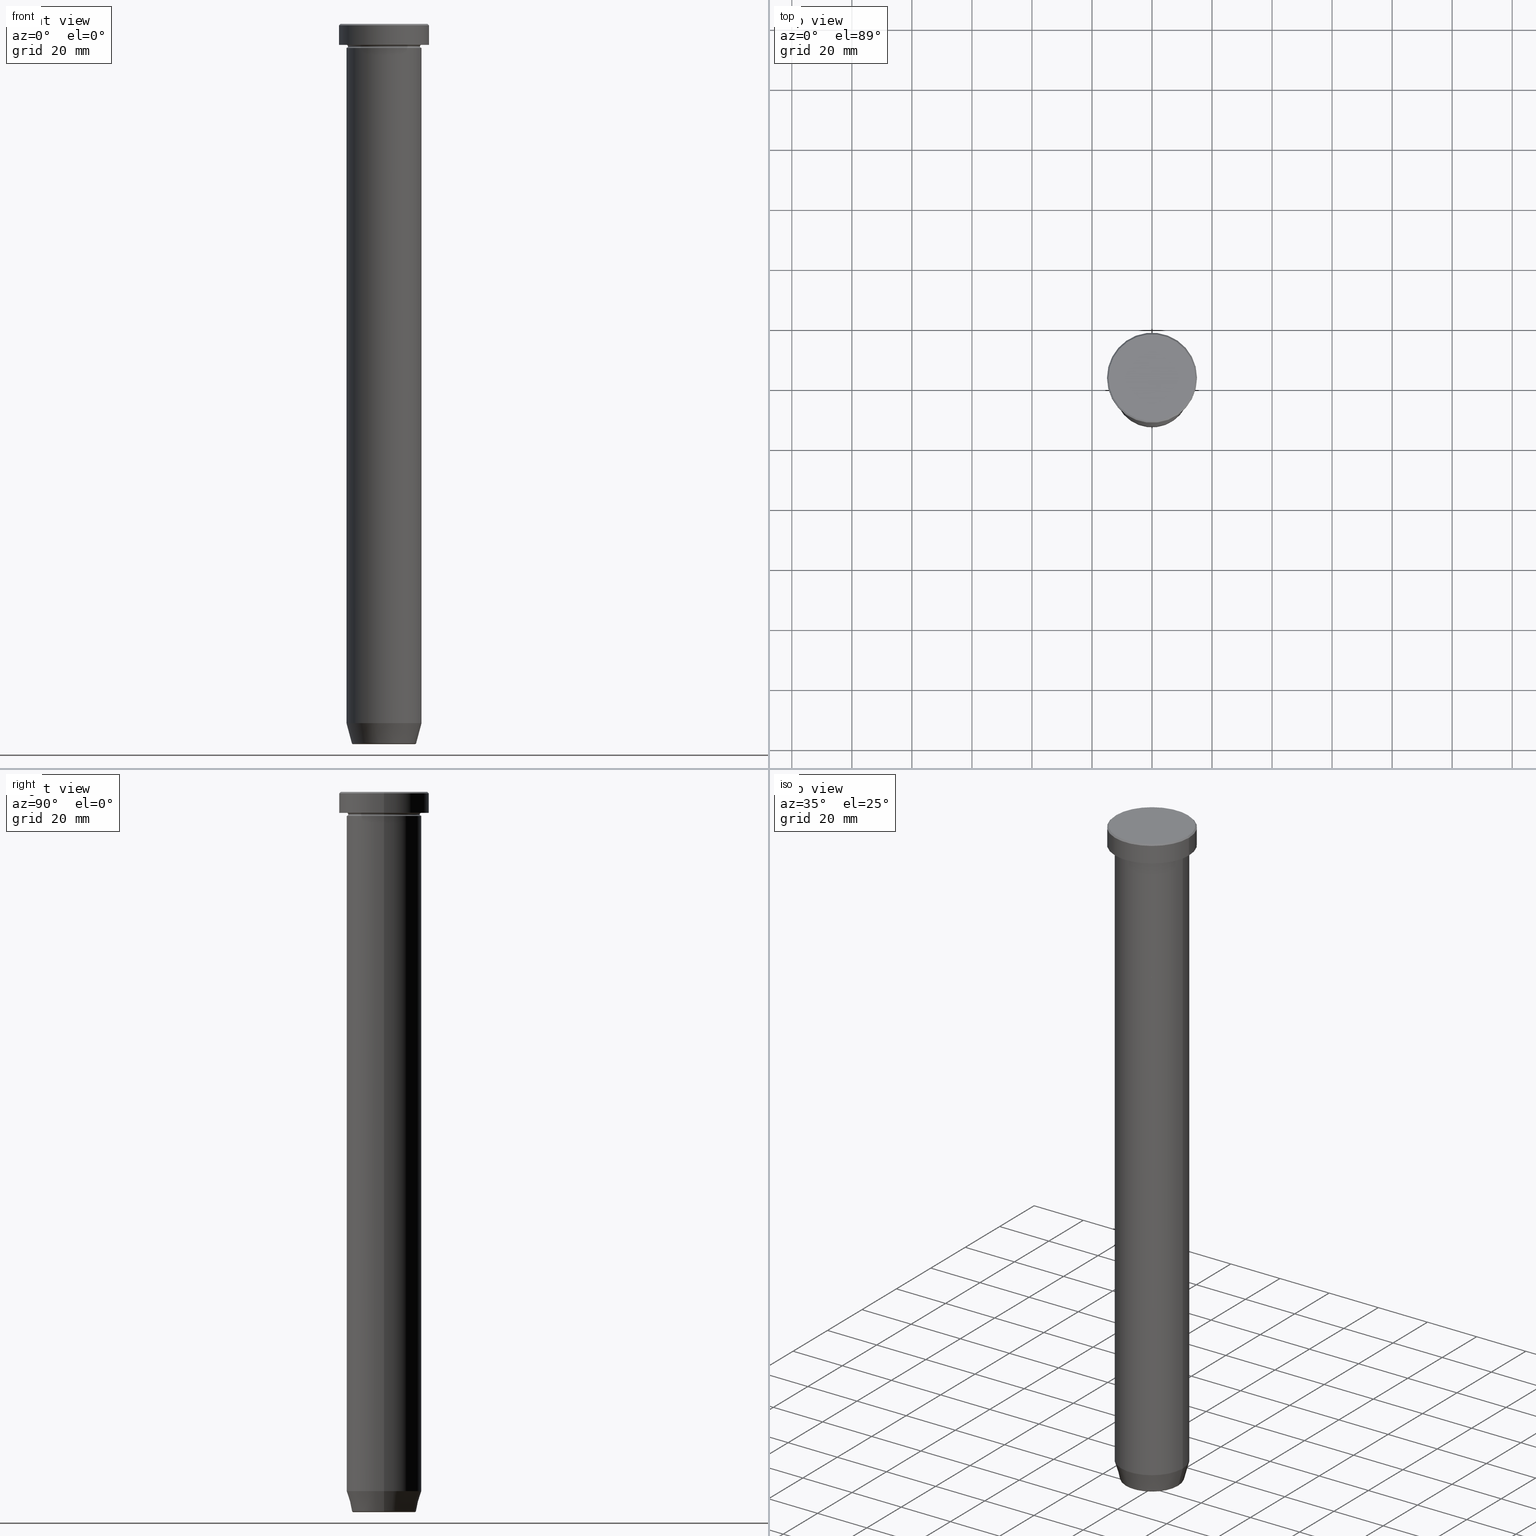
[diagram: canonical four-view strip — front | top / right | iso, engineering-drawing reading convention]
A machine part, canonical four-view strip (front | top / right | iso — engineering-drawing reading convention). The complete STEP part file that produces these views, byte-faithful:
ISO-10303-21;
HEADER;
FILE_DESCRIPTION (( 'STEP AP203' ),
    '1' );
FILE_NAME ('484c.STEP',
    '2024-01-02T20:43:46',
    ( '' ),
    ( '' ),
    'SwSTEP 2.0',
    'SolidWorks 2019',
    '' );
FILE_SCHEMA (( 'CONFIG_CONTROL_DESIGN' ));
ENDSEC;

DATA;
#1 = APPROVAL_ROLE ( '' ) ;
#2 = AXIS2_PLACEMENT_3D ( 'NONE', #51, #413, #9 ) ;
#3 = CC_DESIGN_APPROVAL ( #232, ( #331 ) ) ;
#4 = ORIENTED_EDGE ( 'NONE', *, *, #514, .F. ) ;
#5 = DIRECTION ( 'NONE',  ( 0.000000000000000000, 0.000000000000000000, -1.000000000000000000 ) ) ;
#6 = APPROVAL_STATUS ( 'not_yet_approved' ) ;
#7 = ORIENTED_EDGE ( 'NONE', *, *, #447, .T. ) ;
#8 = CARTESIAN_POINT ( 'NONE',  ( -12.50000000000000000, 1.530808498934191521E-15, -7.500000000000000000 ) ) ;
#9 = DIRECTION ( 'NONE',  ( 1.000000000000000000, 0.000000000000000000, 0.000000000000000000 ) ) ;
#10 = FACE_OUTER_BOUND ( 'NONE', #495, .T. ) ;
#11 = APPLICATION_PROTOCOL_DEFINITION ( 'international standard', 'config_control_design', 1994, #403 ) ;
#12 = ADVANCED_FACE ( 'NONE', ( #10 ), #543, .T. ) ;
#13 = CARTESIAN_POINT ( 'NONE',  ( -15.00000000000000000, 1.836970198721029589E-15, -0.4999999999999831246 ) ) ;
#14 = AXIS2_PLACEMENT_3D ( 'NONE', #190, #546, #460 ) ;
#15 = CIRCLE ( 'NONE', #477, 15.00000000000000000 ) ;
#16 = DIRECTION ( 'NONE',  ( 1.000000000000000000, 0.000000000000000000, 0.000000000000000000 ) ) ;
#17 = APPROVAL ( #6, 'NEUR�EN�' ) ;
#18 = CARTESIAN_POINT ( 'NONE',  ( 14.50000000000001066, 1.775737858763663593E-15, 0.000000000000000000 ) ) ;
#19 = EDGE_CURVE ( 'NONE', #313, #94, #385, .T. ) ;
#20 = DIRECTION ( 'NONE',  ( -0.000000000000000000, -0.000000000000000000, 1.000000000000000000 ) ) ;
#21 = VECTOR ( 'NONE', #472, 1000.000000000000000 ) ;
#22 = DIRECTION ( 'NONE',  ( -1.000000000000000000, 0.000000000000000000, 0.000000000000000000 ) ) ;
#23 = ORIENTED_EDGE ( 'NONE', *, *, #45, .F. ) ;
#24 = DIRECTION ( 'NONE',  ( -1.000000000000000000, 0.000000000000000000, 0.000000000000000000 ) ) ;
#25 = AXIS2_PLACEMENT_3D ( 'NONE', #407, #5, #184 ) ;
#26 = CC_DESIGN_SECURITY_CLASSIFICATION ( #577, ( #498 ) ) ;
#27 = DIRECTION ( 'NONE',  ( -0.2588190451025209060, 3.169619151431766790E-17, 0.9659258262890682012 ) ) ;
#28 = VERTEX_POINT ( 'NONE', #357 ) ;
#29 = EDGE_CURVE ( 'NONE', #28, #387, #521, .T. ) ;
#30 = CARTESIAN_POINT ( 'NONE',  ( 0.000000000000000000, 0.000000000000000000, 0.000000000000000000 ) ) ;
#31 = DIRECTION ( 'NONE',  ( 1.000000000000000000, 0.000000000000000000, 0.000000000000000000 ) ) ;
#32 = AXIS2_PLACEMENT_3D ( 'NONE', #205, #159, #22 ) ;
#33 = EDGE_LOOP ( 'NONE', ( #462, #525, #364, #400 ) ) ;
#34 = PLANE ( 'NONE',  #116 ) ;
#35 = DIRECTION ( 'NONE',  ( 1.000000000000000000, 0.000000000000000000, 0.000000000000000000 ) ) ;
#36 = ADVANCED_FACE ( 'NONE', ( #153 ), #563, .T. ) ;
#37 = DIRECTION ( 'NONE',  ( -0.000000000000000000, -0.000000000000000000, 1.000000000000000000 ) ) ;
#38 = DIRECTION ( 'NONE',  ( -0.000000000000000000, -0.000000000000000000, 1.000000000000000000 ) ) ;
#39 = CARTESIAN_POINT ( 'NONE',  ( 0.000000000000000000, 12.50000000000000000, -50.00000000000000000 ) ) ;
#40 = CARTESIAN_POINT ( 'NONE',  ( 12.50000000000000000, 0.000000000000000000, -50.00000000000000000 ) ) ;
#41 = AXIS2_PLACEMENT_3D ( 'NONE', #394, #308, #124 ) ;
#42 = DIRECTION ( 'NONE',  ( 1.000000000000000000, 0.000000000000000000, 0.000000000000000000 ) ) ;
#43 = DIRECTION ( 'NONE',  ( 1.000000000000000000, 0.000000000000000000, 0.000000000000000000 ) ) ;
#44 = CARTESIAN_POINT ( 'NONE',  ( 12.50000000000000000, 0.000000000000000000, -232.9999999999999716 ) ) ;
#45 = EDGE_CURVE ( 'NONE', #155, #313, #68, .T. ) ;
#46 = AXIS2_PLACEMENT_3D ( 'NONE', #567, #381, #327 ) ;
#47 = ORIENTED_EDGE ( 'NONE', *, *, #292, .T. ) ;
#48 = CARTESIAN_POINT ( 'NONE',  ( 10.24069215899266361, 0.000000000000000000, -240.0000000000000000 ) ) ;
#49 = AXIS2_PLACEMENT_3D ( 'NONE', #436, #268, #120 ) ;
#50 = PERSON_AND_ORGANIZATION ( #517, #373 ) ;
#51 = CARTESIAN_POINT ( 'NONE',  ( 0.000000000000000000, 0.000000000000000000, -7.500000000000000000 ) ) ;
#52 = DIRECTION ( 'NONE',  ( -1.000000000000000000, 0.000000000000000000, 0.000000000000000000 ) ) ;
#53 = ADVANCED_FACE ( 'NONE', ( #58 ), #247, .F. ) ;
#54 = ORIENTED_EDGE ( 'NONE', *, *, #559, .F. ) ;
#55 = CARTESIAN_POINT ( 'NONE',  ( 0.000000000000000000, 0.000000000000000000, -50.00000000000000000 ) ) ;
#56 = CARTESIAN_POINT ( 'NONE',  ( 12.50000000000000000, 0.000000000000000000, -50.00000000000000000 ) ) ;
#57 = EDGE_LOOP ( 'NONE', ( #215, #198 ) ) ;
#58 = FACE_OUTER_BOUND ( 'NONE', #453, .T. ) ;
#59 = DIRECTION ( 'NONE',  ( -0.000000000000000000, -0.000000000000000000, 1.000000000000000000 ) ) ;
#60 = DIRECTION ( 'NONE',  ( 0.000000000000000000, -1.000000000000000000, 0.000000000000000000 ) ) ;
#61 = DIRECTION ( 'NONE',  ( -0.000000000000000000, -0.000000000000000000, 1.000000000000000000 ) ) ;
#62 = CC_DESIGN_APPROVAL ( #17, ( #577 ) ) ;
#63 = ORIENTED_EDGE ( 'NONE', *, *, #384, .F. ) ;
#64 = LINE ( 'NONE', #106, #379 ) ;
#65 = ORIENTED_EDGE ( 'NONE', *, *, #96, .T. ) ;
#66 = LINE ( 'NONE', #428, #91 ) ;
#67 = ORIENTED_EDGE ( 'NONE', *, *, #298, .F. ) ;
#68 = LINE ( 'NONE', #18, #21 ) ;
#69 = AXIS2_PLACEMENT_3D ( 'NONE', #442, #38, #218 ) ;
#70 = CIRCLE ( 'NONE', #284, 12.50000000000000000 ) ;
#71 = EDGE_CURVE ( 'NONE', #286, #282, #239, .T. ) ;
#72 = CC_DESIGN_PERSON_AND_ORGANIZATION_ASSIGNMENT ( #142, #362, ( #498 ) ) ;
#73 = FACE_OUTER_BOUND ( 'NONE', #238, .T. ) ;
#74 = ORIENTED_EDGE ( 'NONE', *, *, #123, .F. ) ;
#75 = DIRECTION ( 'NONE',  ( 1.000000000000000000, 0.000000000000000000, 0.000000000000000000 ) ) ;
#76 = DIRECTION ( 'NONE',  ( 0.000000000000000000, 0.000000000000000000, -1.000000000000000000 ) ) ;
#77 = DIRECTION ( 'NONE',  ( -0.000000000000000000, -0.000000000000000000, 1.000000000000000000 ) ) ;
#78 = EDGE_CURVE ( 'NONE', #375, #82, #64, .T. ) ;
#79 = APPROVAL_PERSON_ORGANIZATION ( #410, #17, #191 ) ;
#80 = FACE_OUTER_BOUND ( 'NONE', #207, .T. ) ;
#81 = DIRECTION ( 'NONE',  ( 1.000000000000000000, 0.000000000000000000, 0.000000000000000000 ) ) ;
#82 = VERTEX_POINT ( 'NONE', #418 ) ;
#83 = FACE_OUTER_BOUND ( 'NONE', #138, .T. ) ;
#84 = CIRCLE ( 'NONE', #409, 12.50000000000000000 ) ;
#85 =( GEOMETRIC_REPRESENTATION_CONTEXT ( 3 ) GLOBAL_UNCERTAINTY_ASSIGNED_CONTEXT ( ( #104 ) ) GLOBAL_UNIT_ASSIGNED_CONTEXT ( ( #363, #412, #508 ) ) REPRESENTATION_CONTEXT ( 'NONE', 'WORKASPACE' ) );
#86 = EDGE_CURVE ( 'NONE', #267, #458, #125, .T. ) ;
#87 = PERSON_AND_ORGANIZATION ( #517, #373 ) ;
#88 = EDGE_LOOP ( 'NONE', ( #54, #173, #523, #503 ) ) ;
#89 = CC_DESIGN_PERSON_AND_ORGANIZATION_ASSIGNMENT ( #319, #590, ( #498 ) ) ;
#90 = ORIENTED_EDGE ( 'NONE', *, *, #29, .F. ) ;
#91 = VECTOR ( 'NONE', #157, 1000.000000000000000 ) ;
#92 = DATE_TIME_ROLE ( 'classification_date' ) ;
#93 = ORIENTED_EDGE ( 'NONE', *, *, #135, .F. ) ;
#94 = VERTEX_POINT ( 'NONE', #13 ) ;
#95 = DIRECTION ( 'NONE',  ( -0.000000000000000000, -0.000000000000000000, 1.000000000000000000 ) ) ;
#96 = EDGE_CURVE ( 'NONE', #282, #192, #296, .T. ) ;
#97 = AXIS2_PLACEMENT_3D ( 'NONE', #126, #443, #42 ) ;
#98 = SHAPE_DEFINITION_REPRESENTATION ( #213, #208 ) ;
#99 = VECTOR ( 'NONE', #255, 1000.000000000000000 ) ;
#100 = EDGE_LOOP ( 'NONE', ( #466, #419, #117, #67 ) ) ;
#101 = CARTESIAN_POINT ( 'NONE',  ( -10.72365507213718949, 1.422038742429750318E-15, -239.6294095225512422 ) ) ;
#102 = DIRECTION ( 'NONE',  ( -1.000000000000000000, 1.224646799147353454E-16, 0.000000000000000000 ) ) ;
#103 = CARTESIAN_POINT ( 'NONE',  ( 0.000000000000000000, 0.000000000000000000, 0.000000000000000000 ) ) ;
#104 = UNCERTAINTY_MEASURE_WITH_UNIT (LENGTH_MEASURE( 1.000000000000000082E-05 ), #363, 'distance_accuracy_value', 'NONE');
#105 = DIRECTION ( 'NONE',  ( -0.000000000000000000, -0.000000000000000000, 1.000000000000000000 ) ) ;
#106 = CARTESIAN_POINT ( 'NONE',  ( -12.50000000000000000, 1.530808498934191521E-15, 0.000000000000000000 ) ) ;
#107 = VERTEX_POINT ( 'NONE', #513 ) ;
#108 = AXIS2_PLACEMENT_3D ( 'NONE', #541, #482, #305 ) ;
#109 = ADVANCED_FACE ( 'NONE', ( #111 ), #240, .T. ) ;
#110 = AXIS2_PLACEMENT_3D ( 'NONE', #182, #358, #288 ) ;
#111 = FACE_OUTER_BOUND ( 'NONE', #451, .T. ) ;
#112 = AXIS2_PLACEMENT_3D ( 'NONE', #370, #493, #449 ) ;
#113 = DIRECTION ( 'NONE',  ( 0.000000000000000000, 0.000000000000000000, -1.000000000000000000 ) ) ;
#114 = DIRECTION ( 'NONE',  ( -0.000000000000000000, -0.000000000000000000, 1.000000000000000000 ) ) ;
#115 = EDGE_CURVE ( 'NONE', #265, #210, #66, .T. ) ;
#116 = AXIS2_PLACEMENT_3D ( 'NONE', #30, #214, #533 ) ;
#117 = ORIENTED_EDGE ( 'NONE', *, *, #520, .T. ) ;
#118 = LOCAL_TIME ( 21, 43, 46.00000000000000000, #408 ) ;
#119 = CC_DESIGN_PERSON_AND_ORGANIZATION_ASSIGNMENT ( #87, #185, ( #577 ) ) ;
#120 = DIRECTION ( 'NONE',  ( 1.000000000000000000, 0.000000000000000000, 0.000000000000000000 ) ) ;
#121 = CARTESIAN_POINT ( 'NONE',  ( 0.000000000000000000, 0.000000000000000000, -6.999999999999999112 ) ) ;
#122 = AXIS2_PLACEMENT_3D ( 'NONE', #330, #473, #515 ) ;
#123 = EDGE_CURVE ( 'NONE', #458, #282, #393, .T. ) ;
#124 = DIRECTION ( 'NONE',  ( 0.000000000000000000, 0.000000000000000000, -1.000000000000000000 ) ) ;
#125 = CIRCLE ( 'NONE', #346, 0.5000000000000004441 ) ;
#126 = CARTESIAN_POINT ( 'NONE',  ( 0.000000000000000000, 0.000000000000000000, -8.000000000000000000 ) ) ;
#127 = CIRCLE ( 'NONE', #97, 12.50000000000000000 ) ;
#128 = DIRECTION ( 'NONE',  ( -0.000000000000000000, -0.000000000000000000, 1.000000000000000000 ) ) ;
#129 = FACE_OUTER_BOUND ( 'NONE', #289, .T. ) ;
#130 = CYLINDRICAL_SURFACE ( 'NONE', #140, 15.00000000000000000 ) ;
#131 = AXIS2_PLACEMENT_3D ( 'NONE', #425, #20, #24 ) ;
#132 = DIRECTION ( 'NONE',  ( -0.000000000000000000, -0.000000000000000000, 1.000000000000000000 ) ) ;
#133 = CLOSED_SHELL ( 'NONE', ( #177, #368, #186, #347, #540, #530, #483, #162, #492, #12, #599, #242, #424 ) ) ;
#134 = ORIENTED_EDGE ( 'NONE', *, *, #356, .T. ) ;
#135 = EDGE_CURVE ( 'NONE', #192, #189, #337, .T. ) ;
#136 = DIRECTION ( 'NONE',  ( 0.000000000000000000, 0.000000000000000000, -1.000000000000000000 ) ) ;
#137 = DIRECTION ( 'NONE',  ( 0.000000000000000000, 0.000000000000000000, 1.000000000000000000 ) ) ;
#138 = EDGE_LOOP ( 'NONE', ( #549, #217, #395, #479 ) ) ;
#139 = CARTESIAN_POINT ( 'NONE',  ( 0.000000000000000000, 0.000000000000000000, -50.00000000000000000 ) ) ;
#140 = AXIS2_PLACEMENT_3D ( 'NONE', #223, #128, #31 ) ;
#141 = AXIS2_PLACEMENT_3D ( 'NONE', #343, #353, #488 ) ;
#142 = PERSON_AND_ORGANIZATION ( #517, #373 ) ;
#143 = DIRECTION ( 'NONE',  ( -0.000000000000000000, -0.000000000000000000, 1.000000000000000000 ) ) ;
#144 = DIRECTION ( 'NONE',  ( -0.000000000000000000, -0.000000000000000000, 1.000000000000000000 ) ) ;
#145 = CALENDAR_DATE ( 2024, 2, 1 ) ;
#146 = ORIENTED_EDGE ( 'NONE', *, *, #199, .T. ) ;
#147 = EDGE_CURVE ( 'NONE', #285, #206, #427, .T. ) ;
#148 = ORIENTED_EDGE ( 'NONE', *, *, #86, .F. ) ;
#149 = CARTESIAN_POINT ( 'NONE',  ( 12.50000000000000000, 0.000000000000000000, -7.500000000000000000 ) ) ;
#150 = CALENDAR_DATE ( 2024, 2, 1 ) ;
#151 = VECTOR ( 'NONE', #573, 1000.000000000000000 ) ;
#152 = AXIS2_PLACEMENT_3D ( 'NONE', #529, #132, #391 ) ;
#153 = FACE_OUTER_BOUND ( 'NONE', #597, .T. ) ;
#154 = CARTESIAN_POINT ( 'NONE',  ( -14.50000000000001066, 0.000000000000000000, 0.000000000000000000 ) ) ;
#155 = VERTEX_POINT ( 'NONE', #434 ) ;
#156 = EDGE_CURVE ( 'NONE', #294, #107, #203, .T. ) ;
#157 = DIRECTION ( 'NONE',  ( -0.000000000000000000, -0.000000000000000000, 1.000000000000000000 ) ) ;
#158 = ORIENTED_EDGE ( 'NONE', *, *, #505, .F. ) ;
#159 = DIRECTION ( 'NONE',  ( 0.000000000000000000, 0.000000000000000000, -1.000000000000000000 ) ) ;
#160 = DIRECTION ( 'NONE',  ( -0.000000000000000000, -0.000000000000000000, 1.000000000000000000 ) ) ;
#161 = CARTESIAN_POINT ( 'NONE',  ( 10.62435565298213902, 0.000000000000000000, -240.0000000000000000 ) ) ;
#162 = ADVANCED_FACE ( 'NONE', ( #539 ), #130, .T. ) ;
#163 = VECTOR ( 'NONE', #95, 1000.000000000000000 ) ;
#164 = FACE_OUTER_BOUND ( 'NONE', #487, .T. ) ;
#165 = LOCAL_TIME ( 21, 43, 46.00000000000000000, #552 ) ;
#166 = EDGE_LOOP ( 'NONE', ( #405, #342 ) ) ;
#167 = DIRECTION ( 'NONE',  ( -0.000000000000000000, -0.000000000000000000, 1.000000000000000000 ) ) ;
#168 = PERSON_AND_ORGANIZATION ( #517, #373 ) ;
#169 = CARTESIAN_POINT ( 'NONE',  ( 0.000000000000000000, 0.000000000000000000, 0.000000000000000000 ) ) ;
#170 = DIRECTION ( 'NONE',  ( 0.000000000000000000, 0.000000000000000000, -1.000000000000000000 ) ) ;
#171 = CARTESIAN_POINT ( 'NONE',  ( 10.72365507213718949, 0.000000000000000000, -239.6294095225512422 ) ) ;
#172 = AXIS2_PLACEMENT_3D ( 'NONE', #389, #76, #302 ) ;
#173 = ORIENTED_EDGE ( 'NONE', *, *, #338, .F. ) ;
#174 = CARTESIAN_POINT ( 'NONE',  ( 12.50000000000000000, 0.000000000000000000, -8.000000000000000000 ) ) ;
#175 = DIRECTION ( 'NONE',  ( -0.000000000000000000, -0.000000000000000000, 1.000000000000000000 ) ) ;
#176 = CARTESIAN_POINT ( 'NONE',  ( -14.50000000000001066, 0.000000000000000000, 0.000000000000000000 ) ) ;
#177 = ADVANCED_FACE ( 'NONE', ( #392 ), #396, .T. ) ;
#178 = COORDINATED_UNIVERSAL_TIME_OFFSET ( 1, 0, .AHEAD. ) ;
#179 = CARTESIAN_POINT ( 'NONE',  ( 0.000000000000000000, 0.000000000000000000, -0.4999999999999831246 ) ) ;
#180 = DIRECTION ( 'NONE',  ( -1.000000000000000000, 0.000000000000000000, 0.000000000000000000 ) ) ;
#181 = VERTEX_POINT ( 'NONE', #40 ) ;
#182 = CARTESIAN_POINT ( 'NONE',  ( 0.000000000000000000, 0.000000000000000000, -7.500000000000000000 ) ) ;
#183 = ORIENTED_EDGE ( 'NONE', *, *, #204, .F. ) ;
#184 = DIRECTION ( 'NONE',  ( -1.000000000000000000, 0.000000000000000000, -0.000000000000000000 ) ) ;
#185 = PERSON_AND_ORGANIZATION_ROLE ( 'classification_officer' ) ;
#186 = ADVANCED_FACE ( 'NONE', ( #484 ), #388, .F. ) ;
#187 = ORIENTED_EDGE ( 'NONE', *, *, #29, .T. ) ;
#188 = DIRECTION ( 'NONE',  ( 1.224646799147353207E-16, 1.000000000000000000, 0.000000000000000000 ) ) ;
#189 = VERTEX_POINT ( 'NONE', #399 ) ;
#190 = CARTESIAN_POINT ( 'NONE',  ( 0.000000000000000000, 0.000000000000000000, -6.999999999999999112 ) ) ;
#191 = APPROVAL_ROLE ( '' ) ;
#192 = VERTEX_POINT ( 'NONE', #349 ) ;
#193 = CYLINDRICAL_SURFACE ( 'NONE', #566, 12.50000000000000000 ) ;
#194 = CARTESIAN_POINT ( 'NONE',  ( 0.000000000000000000, 0.000000000000000000, -232.9999999999999716 ) ) ;
#195 = ORIENTED_EDGE ( 'NONE', *, *, #19, .T. ) ;
#196 = CONICAL_SURFACE ( 'NONE', #258, 10.62435565298213902, 0.2617993877991495744 ) ;
#197 = CC_DESIGN_APPROVAL ( #295, ( #498 ) ) ;
#198 = ORIENTED_EDGE ( 'NONE', *, *, #324, .T. ) ;
#199 = EDGE_CURVE ( 'NONE', #206, #107, #333, .T. ) ;
#200 = DIRECTION ( 'NONE',  ( 1.224646799147353207E-16, 1.000000000000000000, 0.000000000000000000 ) ) ;
#201 = ORIENTED_EDGE ( 'NONE', *, *, #356, .F. ) ;
#202 = DIRECTION ( 'NONE',  ( -0.000000000000000000, -0.000000000000000000, 1.000000000000000000 ) ) ;
#203 = CIRCLE ( 'NONE', #459, 12.50000000000000000 ) ;
#204 = EDGE_CURVE ( 'NONE', #210, #82, #527, .T. ) ;
#205 = CARTESIAN_POINT ( 'NONE',  ( 0.000000000000000000, 0.000000000000000000, -7.500000000000000000 ) ) ;
#206 = VERTEX_POINT ( 'NONE', #355 ) ;
#207 = EDGE_LOOP ( 'NONE', ( #440, #398 ) ) ;
#208 = ADVANCED_BREP_SHAPE_REPRESENTATION ( '484c', ( #374, #571, #314 ), #85 ) ;
#209 = CIRCLE ( 'NONE', #2, 12.00000000000000000 ) ;
#210 = VERTEX_POINT ( 'NONE', #174 ) ;
#211 = DIRECTION ( 'NONE',  ( 1.000000000000000000, 0.000000000000000000, 0.000000000000000000 ) ) ;
#212 = ADVANCED_FACE ( 'NONE', ( #83 ), #476, .T. ) ;
#213 = PRODUCT_DEFINITION_SHAPE ( 'NONE', 'NONE',  #331 ) ;
#214 = DIRECTION ( 'NONE',  ( 0.000000000000000000, -0.000000000000000000, 1.000000000000000000 ) ) ;
#215 = ORIENTED_EDGE ( 'NONE', *, *, #431, .T. ) ;
#216 = PLANE ( 'NONE',  #141 ) ;
#217 = ORIENTED_EDGE ( 'NONE', *, *, #447, .F. ) ;
#218 = DIRECTION ( 'NONE',  ( 1.000000000000000000, 0.000000000000000000, 0.000000000000000000 ) ) ;
#219 = APPROVAL_STATUS ( 'not_yet_approved' ) ;
#220 = ADVANCED_FACE ( 'NONE', ( #303 ), #196, .T. ) ;
#221 = CYLINDRICAL_SURFACE ( 'NONE', #438, 15.00000000000000000 ) ;
#222 = AXIS2_PLACEMENT_3D ( 'NONE', #450, #37, #397 ) ;
#223 = CARTESIAN_POINT ( 'NONE',  ( 0.000000000000000000, 0.000000000000000000, 0.000000000000000000 ) ) ;
#224 = CIRCLE ( 'NONE', #237, 10.72365507213718949 ) ;
#225 = ORIENTED_EDGE ( 'NONE', *, *, #292, .F. ) ;
#226 = FACE_BOUND ( 'NONE', #166, .T. ) ;
#227 = CARTESIAN_POINT ( 'NONE',  ( 0.000000000000000000, 0.000000000000000000, -7.500000000000000000 ) ) ;
#228 = DATE_AND_TIME ( #275, #118 ) ;
#229 = ORIENTED_EDGE ( 'NONE', *, *, #278, .T. ) ;
#230 = AXIS2_PLACEMENT_3D ( 'NONE', #293, #200, #102 ) ;
#231 = ORIENTED_EDGE ( 'NONE', *, *, #380, .T. ) ;
#232 = APPROVAL ( #219, 'NEUR�EN�' ) ;
#233 = DIRECTION ( 'NONE',  ( -0.000000000000000000, -0.000000000000000000, 1.000000000000000000 ) ) ;
#234 = ORIENTED_EDGE ( 'NONE', *, *, #78, .F. ) ;
#235 = AXIS2_PLACEMENT_3D ( 'NONE', #509, #105, #243 ) ;
#236 = CONICAL_SURFACE ( 'NONE', #556, 14.50000000000001066, 0.7853981633974533860 ) ;
#237 = AXIS2_PLACEMENT_3D ( 'NONE', #596, #233, #281 ) ;
#238 = EDGE_LOOP ( 'NONE', ( #276, #65, #225, #63 ) ) ;
#239 = CIRCLE ( 'NONE', #230, 0.5000000000000004441 ) ;
#240 = TOROIDAL_SURFACE ( 'NONE', #122, 10.24069215899266361, 0.5000000000000000000 ) ;
#241 = VERTEX_POINT ( 'NONE', #176 ) ;
#242 = ADVANCED_FACE ( 'NONE', ( #452 ), #339, .F. ) ;
#243 = DIRECTION ( 'NONE',  ( 1.000000000000000000, 0.000000000000000000, 0.000000000000000000 ) ) ;
#244 = VECTOR ( 'NONE', #502, 1000.000000000000000 ) ;
#245 = AXIS2_PLACEMENT_3D ( 'NONE', #504, #59, #557 ) ;
#246 = CARTESIAN_POINT ( 'NONE',  ( -10.62435565298213902, 1.301108314342766318E-15, -240.0000000000000000 ) ) ;
#247 = PLANE ( 'NONE',  #46 ) ;
#248 = CARTESIAN_POINT ( 'NONE',  ( 0.000000000000000000, 0.000000000000000000, -7.500000000000000000 ) ) ;
#249 = CC_DESIGN_DATE_AND_TIME_ASSIGNMENT ( #228, #547, ( #331 ) ) ;
#250 = ORIENTED_EDGE ( 'NONE', *, *, #115, .F. ) ;
#251 = AXIS2_PLACEMENT_3D ( 'NONE', #481, #352, #491 ) ;
#252 = EDGE_LOOP ( 'NONE', ( #444, #591 ) ) ;
#253 = DIRECTION ( 'NONE',  ( 1.000000000000000000, 0.000000000000000000, 0.000000000000000000 ) ) ;
#254 = CALENDAR_DATE ( 2024, 2, 1 ) ;
#255 = DIRECTION ( 'NONE',  ( -0.000000000000000000, -0.000000000000000000, 1.000000000000000000 ) ) ;
#256 = EDGE_CURVE ( 'NONE', #375, #265, #269, .T. ) ;
#257 = PERSON_AND_ORGANIZATION_ROLE ( 'creator' ) ;
#258 = AXIS2_PLACEMENT_3D ( 'NONE', #588, #271, #81 ) ;
#259 = DIRECTION ( 'NONE',  ( 0.000000000000000000, 0.000000000000000000, -1.000000000000000000 ) ) ;
#260 = APPROVAL_PERSON_ORGANIZATION ( #581, #232, #572 ) ;
#261 = DIRECTION ( 'NONE',  ( -1.000000000000000000, 0.000000000000000000, -0.000000000000000000 ) ) ;
#262 = ORIENTED_EDGE ( 'NONE', *, *, #468, .T. ) ;
#263 = EDGE_CURVE ( 'NONE', #107, #294, #283, .T. ) ;
#264 = PLANE ( 'NONE',  #297 ) ;
#265 = VERTEX_POINT ( 'NONE', #56 ) ;
#266 = DATE_AND_TIME ( #366, #421 ) ;
#267 = VERTEX_POINT ( 'NONE', #48 ) ;
#268 = DIRECTION ( 'NONE',  ( -0.000000000000000000, -0.000000000000000000, 1.000000000000000000 ) ) ;
#269 = CIRCLE ( 'NONE', #420, 12.50000000000000000 ) ;
#270 = EDGE_LOOP ( 'NONE', ( #501, #146, #423, #506 ) ) ;
#271 = DIRECTION ( 'NONE',  ( -0.000000000000000000, -0.000000000000000000, 1.000000000000000000 ) ) ;
#272 = ORIENTED_EDGE ( 'NONE', *, *, #316, .T. ) ;
#273 = ORIENTED_EDGE ( 'NONE', *, *, #411, .F. ) ;
#274 = DIRECTION ( 'NONE',  ( 0.000000000000000000, 0.000000000000000000, -1.000000000000000000 ) ) ;
#275 = CALENDAR_DATE ( 2024, 2, 1 ) ;
#276 = ORIENTED_EDGE ( 'NONE', *, *, #123, .T. ) ;
#277 = CARTESIAN_POINT ( 'NONE',  ( 15.00000000000000000, 0.000000000000000000, 0.000000000000000000 ) ) ;
#278 = EDGE_CURVE ( 'NONE', #241, #94, #512, .T. ) ;
#279 = COORDINATED_UNIVERSAL_TIME_OFFSET ( 1, 0, .AHEAD. ) ;
#280 = EDGE_LOOP ( 'NONE', ( #332, #309, #354, #489 ) ) ;
#281 = DIRECTION ( 'NONE',  ( -1.000000000000000000, 0.000000000000000000, 0.000000000000000000 ) ) ;
#282 = VERTEX_POINT ( 'NONE', #101 ) ;
#283 = CIRCLE ( 'NONE', #14, 12.50000000000000000 ) ;
#284 = AXIS2_PLACEMENT_3D ( 'NONE', #55, #143, #592 ) ;
#285 = VERTEX_POINT ( 'NONE', #365 ) ;
#286 = VERTEX_POINT ( 'NONE', #507 ) ;
#287 = ADVANCED_FACE ( 'NONE', ( #416 ), #456, .F. ) ;
#288 = DIRECTION ( 'NONE',  ( 1.000000000000000000, 0.000000000000000000, 0.000000000000000000 ) ) ;
#289 = EDGE_LOOP ( 'NONE', ( #23, #273, #229, #417 ) ) ;
#290 = TOROIDAL_SURFACE ( 'NONE', #32, 12.50000000000000000, 0.5000000000000000000 ) ;
#291 = DIRECTION ( 'NONE',  ( 1.000000000000000000, 0.000000000000000000, 0.000000000000000000 ) ) ;
#292 = EDGE_CURVE ( 'NONE', #360, #192, #84, .T. ) ;
#293 = CARTESIAN_POINT ( 'NONE',  ( -10.24069215899266361, 1.254123087356376227E-15, -239.5000000000000000 ) ) ;
#294 = VERTEX_POINT ( 'NONE', #551 ) ;
#295 = APPROVAL ( #404, 'NEUR�EN�' ) ;
#296 = LINE ( 'NONE', #246, #593 ) ;
#297 = AXIS2_PLACEMENT_3D ( 'NONE', #39, #170, #261 ) ;
#298 = EDGE_CURVE ( 'NONE', #387, #313, #558, .T. ) ;
#299 = LINE ( 'NONE', #480, #99 ) ;
#300 = ORIENTED_EDGE ( 'NONE', *, *, #199, .F. ) ;
#301 = DIRECTION ( 'NONE',  ( -0.000000000000000000, -0.000000000000000000, 1.000000000000000000 ) ) ;
#302 = DIRECTION ( 'NONE',  ( 1.000000000000000000, 0.000000000000000000, 0.000000000000000000 ) ) ;
#303 = FACE_OUTER_BOUND ( 'NONE', #33, .T. ) ;
#304 = AXIS2_PLACEMENT_3D ( 'NONE', #361, #274, #322 ) ;
#305 = DIRECTION ( 'NONE',  ( 1.000000000000000000, 0.000000000000000000, 0.000000000000000000 ) ) ;
#306 = DIRECTION ( 'NONE',  ( -1.224646799147353207E-16, 1.000000000000000000, 0.000000000000000000 ) ) ;
#307 = EDGE_CURVE ( 'NONE', #206, #210, #497, .T. ) ;
#308 = DIRECTION ( 'NONE',  ( -0.000000000000000000, -1.000000000000000000, -0.000000000000000000 ) ) ;
#309 = ORIENTED_EDGE ( 'NONE', *, *, #45, .T. ) ;
#310 = DIRECTION ( 'NONE',  ( 0.000000000000000000, 0.000000000000000000, -1.000000000000000000 ) ) ;
#311 = DIRECTION ( 'NONE',  ( 1.000000000000000000, 0.000000000000000000, 0.000000000000000000 ) ) ;
#312 = AXIS2_PLACEMENT_3D ( 'NONE', #580, #310, #345 ) ;
#313 = VERTEX_POINT ( 'NONE', #454 ) ;
#314 = AXIS2_PLACEMENT_3D ( 'NONE', #103, #137, #464 ) ;
#315 = SECURITY_CLASSIFICATION_LEVEL ( 'unclassified' ) ;
#316 = EDGE_CURVE ( 'NONE', #360, #181, #326, .T. ) ;
#317 = ORIENTED_EDGE ( 'NONE', *, *, #457, .T. ) ;
#318 = DIRECTION ( 'NONE',  ( 1.000000000000000000, 0.000000000000000000, 0.000000000000000000 ) ) ;
#319 = PERSON_AND_ORGANIZATION ( #517, #373 ) ;
#320 = CARTESIAN_POINT ( 'NONE',  ( 12.50000000000000000, 0.000000000000000000, 0.000000000000000000 ) ) ;
#321 = DATE_AND_TIME ( #150, #165 ) ;
#322 = DIRECTION ( 'NONE',  ( 1.000000000000000000, 0.000000000000000000, 0.000000000000000000 ) ) ;
#323 = AXIS2_PLACEMENT_3D ( 'NONE', #496, #306, #445 ) ;
#324 = EDGE_CURVE ( 'NONE', #189, #181, #575, .T. ) ;
#325 = LOCAL_TIME ( 21, 43, 46.00000000000000000, #528 ) ;
#326 = LINE ( 'NONE', #320, #244 ) ;
#327 = DIRECTION ( 'NONE',  ( 1.000000000000000000, 0.000000000000000000, 0.000000000000000000 ) ) ;
#328 = ORIENTED_EDGE ( 'NONE', *, *, #457, .F. ) ;
#329 = CARTESIAN_POINT ( 'NONE',  ( -12.50000000000000000, 1.530808498934191521E-15, -50.00000000000000000 ) ) ;
#330 = CARTESIAN_POINT ( 'NONE',  ( 0.000000000000000000, 0.000000000000000000, -239.5000000000000000 ) ) ;
#331 = PRODUCT_DEFINITION ( 'NEZN�M�', '', #498, #465 ) ;
#332 = ORIENTED_EDGE ( 'NONE', *, *, #582, .F. ) ;
#333 = CIRCLE ( 'NONE', #323, 0.5000000000000004441 ) ;
#334 = AXIS2_PLACEMENT_3D ( 'NONE', #490, #175, #439 ) ;
#335 = CARTESIAN_POINT ( 'NONE',  ( 10.24069215899266361, 0.000000000000000000, -239.5000000000000000 ) ) ;
#336 = DIRECTION ( 'NONE',  ( 1.000000000000000000, 0.000000000000000000, 0.000000000000000000 ) ) ;
#337 = LINE ( 'NONE', #574, #463 ) ;
#338 = EDGE_CURVE ( 'NONE', #206, #285, #209, .T. ) ;
#339 = TOROIDAL_SURFACE ( 'NONE', #535, 12.50000000000000000, 0.5000000000000000000 ) ;
#340 = CIRCLE ( 'NONE', #536, 0.5000000000000004441 ) ;
#341 = DIRECTION ( 'NONE',  ( -1.000000000000000000, 0.000000000000000000, 0.000000000000000000 ) ) ;
#342 = ORIENTED_EDGE ( 'NONE', *, *, #263, .T. ) ;
#343 = CARTESIAN_POINT ( 'NONE',  ( 0.000000000000000000, 15.00000000000000000, -6.999999999999999112 ) ) ;
#344 = ORIENTED_EDGE ( 'NONE', *, *, #135, .T. ) ;
#345 = DIRECTION ( 'NONE',  ( -1.000000000000000000, 0.000000000000000000, 0.000000000000000000 ) ) ;
#346 = AXIS2_PLACEMENT_3D ( 'NONE', #335, #562, #113 ) ;
#347 = ADVANCED_FACE ( 'NONE', ( #376 ), #193, .T. ) ;
#348 = FACE_OUTER_BOUND ( 'NONE', #252, .T. ) ;
#349 = CARTESIAN_POINT ( 'NONE',  ( -12.50000000000000000, 1.530808498934191521E-15, -232.9999999999999716 ) ) ;
#350 = AXIS2_PLACEMENT_3D ( 'NONE', #526, #202, #336 ) ;
#351 = FACE_OUTER_BOUND ( 'NONE', #587, .T. ) ;
#352 = DIRECTION ( 'NONE',  ( -0.000000000000000000, -0.000000000000000000, 1.000000000000000000 ) ) ;
#353 = DIRECTION ( 'NONE',  ( 0.000000000000000000, 0.000000000000000000, -1.000000000000000000 ) ) ;
#354 = ORIENTED_EDGE ( 'NONE', *, *, #520, .F. ) ;
#355 = CARTESIAN_POINT ( 'NONE',  ( 12.00000000000000000, 0.000000000000000000, -7.500000000000000000 ) ) ;
#356 = EDGE_CURVE ( 'NONE', #286, #267, #544, .T. ) ;
#357 = CARTESIAN_POINT ( 'NONE',  ( -15.00000000000000000, 1.836970198721029589E-15, -6.999999999999999112 ) ) ;
#358 = DIRECTION ( 'NONE',  ( -0.000000000000000000, -0.000000000000000000, 1.000000000000000000 ) ) ;
#359 = CIRCLE ( 'NONE', #350, 12.50000000000000000 ) ;
#360 = VERTEX_POINT ( 'NONE', #44 ) ;
#361 = CARTESIAN_POINT ( 'NONE',  ( 0.000000000000000000, 0.000000000000000000, -240.0000000000000000 ) ) ;
#362 = PERSON_AND_ORGANIZATION_ROLE ( 'creator' ) ;
#363 =( LENGTH_UNIT ( ) NAMED_UNIT ( * ) SI_UNIT ( .MILLI., .METRE. ) );
#364 = ORIENTED_EDGE ( 'NONE', *, *, #384, .T. ) ;
#365 = CARTESIAN_POINT ( 'NONE',  ( -12.00000000000000000, 1.500192328955507734E-15, -7.500000000000000000 ) ) ;
#366 = CALENDAR_DATE ( 2024, 2, 1 ) ;
#367 = ORIENTED_EDGE ( 'NONE', *, *, #564, .T. ) ;
#368 = ADVANCED_FACE ( 'NONE', ( #598 ), #290, .F. ) ;
#369 = CARTESIAN_POINT ( 'NONE',  ( 0.000000000000000000, 0.000000000000000000, 0.000000000000000000 ) ) ;
#370 = CARTESIAN_POINT ( 'NONE',  ( 0.000000000000000000, 0.000000000000000000, 0.000000000000000000 ) ) ;
#371 = DIRECTION ( 'NONE',  ( -1.000000000000000000, 1.224646799147353454E-16, 0.000000000000000000 ) ) ;
#372 = CIRCLE ( 'NONE', #222, 14.50000000000001066 ) ;
#373 = ORGANIZATION ( 'NEUR�EN�', 'NEUR�EN�', '' ) ;
#374 = MANIFOLD_SOLID_BREP ( 'Zkosen�1', #133 ) ;
#375 = VERTEX_POINT ( 'NONE', #329 ) ;
#376 = FACE_OUTER_BOUND ( 'NONE', #378, .T. ) ;
#377 = CLOSED_SHELL ( 'NONE', ( #109, #474, #36, #287, #402, #220, #53, #212 ) ) ;
#378 = EDGE_LOOP ( 'NONE', ( #367, #545, #183, #250 ) ) ;
#379 = VECTOR ( 'NONE', #519, 1000.000000000000000 ) ;
#380 = EDGE_CURVE ( 'NONE', #192, #360, #359, .T. ) ;
#381 = DIRECTION ( 'NONE',  ( 0.000000000000000000, -0.000000000000000000, 1.000000000000000000 ) ) ;
#382 = CIRCLE ( 'NONE', #172, 10.24069215899266361 ) ;
#383 = TOROIDAL_SURFACE ( 'NONE', #110, 12.50000000000000000, 0.5000000000000000000 ) ;
#384 = EDGE_CURVE ( 'NONE', #458, #360, #568, .T. ) ;
#385 = CIRCLE ( 'NONE', #524, 15.00000000000000000 ) ;
#386 = PRODUCT ( '484c', '484c', '', ( #401 ) ) ;
#387 = VERTEX_POINT ( 'NONE', #494 ) ;
#388 = TOROIDAL_SURFACE ( 'NONE', #516, 12.50000000000000000, 0.5000000000000000000 ) ;
#389 = CARTESIAN_POINT ( 'NONE',  ( 0.000000000000000000, 0.000000000000000000, -240.0000000000000000 ) ) ;
#390 = CC_DESIGN_PERSON_AND_ORGANIZATION_ASSIGNMENT ( #168, #257, ( #331 ) ) ;
#391 = DIRECTION ( 'NONE',  ( 1.000000000000000000, 0.000000000000000000, 0.000000000000000000 ) ) ;
#392 = FACE_OUTER_BOUND ( 'NONE', #280, .T. ) ;
#393 = CIRCLE ( 'NONE', #131, 10.72365507213718949 ) ;
#394 = CARTESIAN_POINT ( 'NONE',  ( -12.50000000000000000, 0.000000000000000000, -7.500000000000000000 ) ) ;
#395 = ORIENTED_EDGE ( 'NONE', *, *, #86, .T. ) ;
#396 = CONICAL_SURFACE ( 'NONE', #312, 14.50000000000001066, 0.7853981633974533860 ) ;
#397 = DIRECTION ( 'NONE',  ( 1.000000000000000000, 0.000000000000000000, 0.000000000000000000 ) ) ;
#398 = ORIENTED_EDGE ( 'NONE', *, *, #256, .F. ) ;
#399 = CARTESIAN_POINT ( 'NONE',  ( -12.50000000000000000, 1.530808498934191521E-15, -50.00000000000000000 ) ) ;
#400 = ORIENTED_EDGE ( 'NONE', *, *, #380, .F. ) ;
#401 = MECHANICAL_CONTEXT ( 'NONE', #403, 'mechanical' ) ;
#402 = ADVANCED_FACE ( 'NONE', ( #164 ), #583, .T. ) ;
#403 = APPLICATION_CONTEXT ( 'configuration controlled 3d designs of mechanical parts and assemblies' ) ;
#404 = APPROVAL_STATUS ( 'not_yet_approved' ) ;
#405 = ORIENTED_EDGE ( 'NONE', *, *, #156, .T. ) ;
#406 = ORIENTED_EDGE ( 'NONE', *, *, #559, .T. ) ;
#407 = CARTESIAN_POINT ( 'NONE',  ( 0.000000000000000000, 0.000000000000000000, -50.00000000000000000 ) ) ;
#408 = COORDINATED_UNIVERSAL_TIME_OFFSET ( 1, 0, .AHEAD. ) ;
#409 = AXIS2_PLACEMENT_3D ( 'NONE', #194, #144, #16 ) ;
#410 = PERSON_AND_ORGANIZATION ( #517, #373 ) ;
#411 = EDGE_CURVE ( 'NONE', #241, #155, #372, .T. ) ;
#412 =( NAMED_UNIT ( * ) PLANE_ANGLE_UNIT ( ) SI_UNIT ( $, .RADIAN. ) );
#413 = DIRECTION ( 'NONE',  ( -0.000000000000000000, -0.000000000000000000, 1.000000000000000000 ) ) ;
#414 = AXIS2_PLACEMENT_3D ( 'NONE', #430, #160, #422 ) ;
#415 = ORIENTED_EDGE ( 'NONE', *, *, #316, .F. ) ;
#416 = FACE_OUTER_BOUND ( 'NONE', #57, .T. ) ;
#417 = ORIENTED_EDGE ( 'NONE', *, *, #19, .F. ) ;
#418 = CARTESIAN_POINT ( 'NONE',  ( -12.50000000000000000, 1.530808498934191521E-15, -8.000000000000000000 ) ) ;
#419 = ORIENTED_EDGE ( 'NONE', *, *, #514, .T. ) ;
#420 = AXIS2_PLACEMENT_3D ( 'NONE', #139, #77, #75 ) ;
#421 = LOCAL_TIME ( 21, 43, 46.00000000000000000, #178 ) ;
#422 = DIRECTION ( 'NONE',  ( 1.000000000000000000, 0.000000000000000000, 0.000000000000000000 ) ) ;
#423 = ORIENTED_EDGE ( 'NONE', *, *, #156, .F. ) ;
#424 = ADVANCED_FACE ( 'NONE', ( #129 ), #236, .T. ) ;
#425 = CARTESIAN_POINT ( 'NONE',  ( 0.000000000000000000, 0.000000000000000000, -239.6294095225512422 ) ) ;
#426 = PERSON_AND_ORGANIZATION ( #517, #373 ) ;
#427 = CIRCLE ( 'NONE', #584, 12.00000000000000000 ) ;
#428 = CARTESIAN_POINT ( 'NONE',  ( 12.50000000000000000, 0.000000000000000000, 0.000000000000000000 ) ) ;
#429 = CIRCLE ( 'NONE', #41, 0.5000000000000004441 ) ;
#430 = CARTESIAN_POINT ( 'NONE',  ( 0.000000000000000000, 0.000000000000000000, -6.999999999999999112 ) ) ;
#431 = EDGE_CURVE ( 'NONE', #181, #189, #486, .T. ) ;
#432 = APPLICATION_PROTOCOL_DEFINITION ( 'international standard', 'config_control_design', 1994, #538 ) ;
#433 = EDGE_LOOP ( 'NONE', ( #300, #532, #262, #570 ) ) ;
#434 = CARTESIAN_POINT ( 'NONE',  ( 14.50000000000001066, 1.806354028742346591E-15, 0.000000000000000000 ) ) ;
#435 = APPROVAL_DATE_TIME ( #478, #232 ) ;
#436 = CARTESIAN_POINT ( 'NONE',  ( 0.000000000000000000, 0.000000000000000000, -50.00000000000000000 ) ) ;
#437 = CC_DESIGN_PERSON_AND_ORGANIZATION_ASSIGNMENT ( #426, #565, ( #386 ) ) ;
#438 = AXIS2_PLACEMENT_3D ( 'NONE', #169, #531, #43 ) ;
#439 = DIRECTION ( 'NONE',  ( 1.000000000000000000, 0.000000000000000000, 0.000000000000000000 ) ) ;
#440 = ORIENTED_EDGE ( 'NONE', *, *, #564, .F. ) ;
#441 = DIRECTION ( 'NONE',  ( -0.000000000000000000, -0.000000000000000000, 1.000000000000000000 ) ) ;
#442 = CARTESIAN_POINT ( 'NONE',  ( 0.000000000000000000, 0.000000000000000000, -8.000000000000000000 ) ) ;
#443 = DIRECTION ( 'NONE',  ( -0.000000000000000000, -0.000000000000000000, 1.000000000000000000 ) ) ;
#444 = ORIENTED_EDGE ( 'NONE', *, *, #411, .T. ) ;
#445 = DIRECTION ( 'NONE',  ( -1.000000000000000000, -1.224646799147353454E-16, 0.000000000000000000 ) ) ;
#446 = CONICAL_SURFACE ( 'NONE', #334, 10.62435565298213902, 0.2617993877991495744 ) ;
#447 = EDGE_CURVE ( 'NONE', #267, #286, #382, .T. ) ;
#448 = APPROVAL_PERSON_ORGANIZATION ( #50, #295, #1 ) ;
#449 = DIRECTION ( 'NONE',  ( 1.000000000000000000, 0.000000000000000000, 0.000000000000000000 ) ) ;
#450 = CARTESIAN_POINT ( 'NONE',  ( 0.000000000000000000, 0.000000000000000000, 0.000000000000000000 ) ) ;
#451 = EDGE_LOOP ( 'NONE', ( #201, #461, #74, #148 ) ) ;
#452 = FACE_OUTER_BOUND ( 'NONE', #433, .T. ) ;
#453 = EDGE_LOOP ( 'NONE', ( #7, #134 ) ) ;
#454 = CARTESIAN_POINT ( 'NONE',  ( 15.00000000000000000, 0.000000000000000000, -0.4999999999999831246 ) ) ;
#455 = EDGE_LOOP ( 'NONE', ( #475, #406, #317, #553 ) ) ;
#456 = PLANE ( 'NONE',  #25 ) ;
#457 = EDGE_CURVE ( 'NONE', #82, #210, #127, .T. ) ;
#458 = VERTEX_POINT ( 'NONE', #171 ) ;
#459 = AXIS2_PLACEMENT_3D ( 'NONE', #121, #301, #52 ) ;
#460 = DIRECTION ( 'NONE',  ( -1.000000000000000000, 0.000000000000000000, 0.000000000000000000 ) ) ;
#461 = ORIENTED_EDGE ( 'NONE', *, *, #71, .T. ) ;
#462 = ORIENTED_EDGE ( 'NONE', *, *, #96, .F. ) ;
#463 = VECTOR ( 'NONE', #167, 1000.000000000000000 ) ;
#464 = DIRECTION ( 'NONE',  ( 1.000000000000000000, 0.000000000000000000, 0.000000000000000000 ) ) ;
#465 = DESIGN_CONTEXT ( 'detailed design', #538, 'design' ) ;
#466 = ORIENTED_EDGE ( 'NONE', *, *, #505, .T. ) ;
#467 = DIRECTION ( 'NONE',  ( -0.7071067811865512365, 0.000000000000000000, -0.7071067811865439090 ) ) ;
#468 = EDGE_CURVE ( 'NONE', #285, #294, #429, .T. ) ;
#469 = ORIENTED_EDGE ( 'NONE', *, *, #431, .F. ) ;
#470 = VECTOR ( 'NONE', #467, 1000.000000000000000 ) ;
#471 = LOCAL_TIME ( 21, 43, 46.00000000000000000, #279 ) ;
#472 = DIRECTION ( 'NONE',  ( 0.7071067811865512365, 8.659560562354979697E-17, -0.7071067811865439090 ) ) ;
#473 = DIRECTION ( 'NONE',  ( -0.000000000000000000, -0.000000000000000000, 1.000000000000000000 ) ) ;
#474 = ADVANCED_FACE ( 'NONE', ( #73 ), #446, .T. ) ;
#475 = ORIENTED_EDGE ( 'NONE', *, *, #147, .F. ) ;
#476 = TOROIDAL_SURFACE ( 'NONE', #251, 10.24069215899266361, 0.5000000000000000000 ) ;
#477 = AXIS2_PLACEMENT_3D ( 'NONE', #537, #579, #211 ) ;
#478 = DATE_AND_TIME ( #254, #325 ) ;
#479 = ORIENTED_EDGE ( 'NONE', *, *, #576, .F. ) ;
#480 = CARTESIAN_POINT ( 'NONE',  ( -15.00000000000000000, 1.836970198721029589E-15, 0.000000000000000000 ) ) ;
#481 = CARTESIAN_POINT ( 'NONE',  ( 0.000000000000000000, 0.000000000000000000, -239.5000000000000000 ) ) ;
#482 = DIRECTION ( 'NONE',  ( -0.000000000000000000, -0.000000000000000000, 1.000000000000000000 ) ) ;
#483 = ADVANCED_FACE ( 'NONE', ( #348 ), #34, .T. ) ;
#484 = FACE_OUTER_BOUND ( 'NONE', #455, .T. ) ;
#485 = AXIS2_PLACEMENT_3D ( 'NONE', #149, #60, #554 ) ;
#486 = CIRCLE ( 'NONE', #49, 12.50000000000000000 ) ;
#487 = EDGE_LOOP ( 'NONE', ( #93, #231, #272, #550 ) ) ;
#488 = DIRECTION ( 'NONE',  ( -1.000000000000000000, 0.000000000000000000, -0.000000000000000000 ) ) ;
#489 = ORIENTED_EDGE ( 'NONE', *, *, #278, .F. ) ;
#490 = CARTESIAN_POINT ( 'NONE',  ( 0.000000000000000000, 0.000000000000000000, -240.0000000000000000 ) ) ;
#491 = DIRECTION ( 'NONE',  ( 1.000000000000000000, 0.000000000000000000, 0.000000000000000000 ) ) ;
#492 = ADVANCED_FACE ( 'NONE', ( #226, #351 ), #216, .T. ) ;
#493 = DIRECTION ( 'NONE',  ( -0.000000000000000000, -0.000000000000000000, 1.000000000000000000 ) ) ;
#494 = CARTESIAN_POINT ( 'NONE',  ( 15.00000000000000000, 0.000000000000000000, -6.999999999999999112 ) ) ;
#495 = EDGE_LOOP ( 'NONE', ( #234, #595, #511, #328 ) ) ;
#496 = CARTESIAN_POINT ( 'NONE',  ( 12.50000000000000000, 1.530808498934191521E-15, -7.500000000000000000 ) ) ;
#497 = CIRCLE ( 'NONE', #485, 0.5000000000000004441 ) ;
#498 = PRODUCT_DEFINITION_FORMATION_WITH_SPECIFIED_SOURCE ( 'LIBOVOLN�', '', #386, .NOT_KNOWN. ) ;
#499 = ORIENTED_EDGE ( 'NONE', *, *, #298, .T. ) ;
#500 = FACE_OUTER_BOUND ( 'NONE', #88, .T. ) ;
#501 = ORIENTED_EDGE ( 'NONE', *, *, #147, .T. ) ;
#502 = DIRECTION ( 'NONE',  ( -0.000000000000000000, -0.000000000000000000, 1.000000000000000000 ) ) ;
#503 = ORIENTED_EDGE ( 'NONE', *, *, #204, .T. ) ;
#504 = CARTESIAN_POINT ( 'NONE',  ( 0.000000000000000000, 0.000000000000000000, 0.000000000000000000 ) ) ;
#505 = EDGE_CURVE ( 'NONE', #387, #28, #585, .T. ) ;
#506 = ORIENTED_EDGE ( 'NONE', *, *, #468, .F. ) ;
#507 = CARTESIAN_POINT ( 'NONE',  ( -10.24069215899266361, 1.283696036640843164E-15, -240.0000000000000000 ) ) ;
#508 =( NAMED_UNIT ( * ) SI_UNIT ( $, .STERADIAN. ) SOLID_ANGLE_UNIT ( ) );
#509 = CARTESIAN_POINT ( 'NONE',  ( 0.000000000000000000, 0.000000000000000000, -50.00000000000000000 ) ) ;
#510 = APPROVAL_DATE_TIME ( #321, #17 ) ;
#511 = ORIENTED_EDGE ( 'NONE', *, *, #115, .T. ) ;
#512 = LINE ( 'NONE', #154, #470 ) ;
#513 = CARTESIAN_POINT ( 'NONE',  ( 12.50000000000000000, 1.530808498934191521E-15, -6.999999999999999112 ) ) ;
#514 = EDGE_CURVE ( 'NONE', #28, #94, #299, .T. ) ;
#515 = DIRECTION ( 'NONE',  ( 1.000000000000000000, 0.000000000000000000, 0.000000000000000000 ) ) ;
#516 = AXIS2_PLACEMENT_3D ( 'NONE', #534, #441, #35 ) ;
#517 = PERSON ( 'NEUR�EN�', 'NEUR�EN�', 'NEUR�EN�', ('NEUR�EN�'), ('NEUR�EN�'), ('NEUR�EN�') ) ;
#518 = CIRCLE ( 'NONE', #245, 14.50000000000001066 ) ;
#519 = DIRECTION ( 'NONE',  ( -0.000000000000000000, -0.000000000000000000, 1.000000000000000000 ) ) ;
#520 = EDGE_CURVE ( 'NONE', #94, #313, #15, .T. ) ;
#521 = CIRCLE ( 'NONE', #414, 15.00000000000000000 ) ;
#522 = CARTESIAN_POINT ( 'NONE',  ( 0.000000000000000000, 0.000000000000000000, 0.000000000000000000 ) ) ;
#523 = ORIENTED_EDGE ( 'NONE', *, *, #307, .T. ) ;
#524 = AXIS2_PLACEMENT_3D ( 'NONE', #179, #136, #311 ) ;
#525 = ORIENTED_EDGE ( 'NONE', *, *, #576, .T. ) ;
#526 = CARTESIAN_POINT ( 'NONE',  ( 0.000000000000000000, 0.000000000000000000, -232.9999999999999716 ) ) ;
#527 = CIRCLE ( 'NONE', #69, 12.50000000000000000 ) ;
#528 = COORDINATED_UNIVERSAL_TIME_OFFSET ( 1, 0, .AHEAD. ) ;
#529 = CARTESIAN_POINT ( 'NONE',  ( 0.000000000000000000, 0.000000000000000000, -6.999999999999999112 ) ) ;
#530 = ADVANCED_FACE ( 'NONE', ( #80 ), #264, .T. ) ;
#531 = DIRECTION ( 'NONE',  ( -0.000000000000000000, -0.000000000000000000, 1.000000000000000000 ) ) ;
#532 = ORIENTED_EDGE ( 'NONE', *, *, #338, .T. ) ;
#533 = DIRECTION ( 'NONE',  ( 1.000000000000000000, 0.000000000000000000, 0.000000000000000000 ) ) ;
#534 = CARTESIAN_POINT ( 'NONE',  ( 0.000000000000000000, 0.000000000000000000, -7.500000000000000000 ) ) ;
#535 = AXIS2_PLACEMENT_3D ( 'NONE', #227, #594, #180 ) ;
#536 = AXIS2_PLACEMENT_3D ( 'NONE', #8, #188, #371 ) ;
#537 = CARTESIAN_POINT ( 'NONE',  ( 0.000000000000000000, 0.000000000000000000, -0.4999999999999831246 ) ) ;
#538 = APPLICATION_CONTEXT ( 'configuration controlled 3d designs of mechanical parts and assemblies' ) ;
#539 = FACE_OUTER_BOUND ( 'NONE', #560, .T. ) ;
#540 = ADVANCED_FACE ( 'NONE', ( #578 ), #221, .T. ) ;
#541 = CARTESIAN_POINT ( 'NONE',  ( 0.000000000000000000, 0.000000000000000000, 0.000000000000000000 ) ) ;
#542 = DATE_AND_TIME ( #145, #471 ) ;
#543 = CYLINDRICAL_SURFACE ( 'NONE', #112, 12.50000000000000000 ) ;
#544 = CIRCLE ( 'NONE', #304, 10.24069215899266361 ) ;
#545 = ORIENTED_EDGE ( 'NONE', *, *, #78, .T. ) ;
#546 = DIRECTION ( 'NONE',  ( -0.000000000000000000, -0.000000000000000000, 1.000000000000000000 ) ) ;
#547 = DATE_TIME_ROLE ( 'creation_date' ) ;
#548 = CC_DESIGN_DATE_AND_TIME_ASSIGNMENT ( #266, #92, ( #577 ) ) ;
#549 = ORIENTED_EDGE ( 'NONE', *, *, #71, .F. ) ;
#550 = ORIENTED_EDGE ( 'NONE', *, *, #324, .F. ) ;
#551 = CARTESIAN_POINT ( 'NONE',  ( -12.50000000000000000, 0.000000000000000000, -6.999999999999999112 ) ) ;
#552 = COORDINATED_UNIVERSAL_TIME_OFFSET ( 1, 0, .AHEAD. ) ;
#553 = ORIENTED_EDGE ( 'NONE', *, *, #307, .F. ) ;
#554 = DIRECTION ( 'NONE',  ( 0.000000000000000000, 0.000000000000000000, -1.000000000000000000 ) ) ;
#555 = APPROVAL_DATE_TIME ( #542, #295 ) ;
#556 = AXIS2_PLACEMENT_3D ( 'NONE', #586, #259, #341 ) ;
#557 = DIRECTION ( 'NONE',  ( 1.000000000000000000, 0.000000000000000000, 0.000000000000000000 ) ) ;
#558 = LINE ( 'NONE', #277, #163 ) ;
#559 = EDGE_CURVE ( 'NONE', #285, #82, #340, .T. ) ;
#560 = EDGE_LOOP ( 'NONE', ( #4, #187, #499, #195 ) ) ;
#561 = DIRECTION ( 'NONE',  ( -0.000000000000000000, -0.000000000000000000, 1.000000000000000000 ) ) ;
#562 = DIRECTION ( 'NONE',  ( 0.000000000000000000, -1.000000000000000000, 0.000000000000000000 ) ) ;
#563 = CYLINDRICAL_SURFACE ( 'NONE', #569, 12.50000000000000000 ) ;
#564 = EDGE_CURVE ( 'NONE', #265, #375, #70, .T. ) ;
#565 = PERSON_AND_ORGANIZATION_ROLE ( 'design_owner' ) ;
#566 = AXIS2_PLACEMENT_3D ( 'NONE', #369, #561, #318 ) ;
#567 = CARTESIAN_POINT ( 'NONE',  ( 0.000000000000000000, 2.326828918379971286E-14, -240.0000000000000000 ) ) ;
#568 = LINE ( 'NONE', #161, #151 ) ;
#569 = AXIS2_PLACEMENT_3D ( 'NONE', #522, #61, #291 ) ;
#570 = ORIENTED_EDGE ( 'NONE', *, *, #263, .F. ) ;
#571 = MANIFOLD_SOLID_BREP ( 'Zaoblit4', #377 ) ;
#572 = APPROVAL_ROLE ( '' ) ;
#573 = DIRECTION ( 'NONE',  ( 0.2588190451025209060, 0.000000000000000000, 0.9659258262890682012 ) ) ;
#574 = CARTESIAN_POINT ( 'NONE',  ( -12.50000000000000000, 1.530808498934191521E-15, 0.000000000000000000 ) ) ;
#575 = CIRCLE ( 'NONE', #235, 12.50000000000000000 ) ;
#576 = EDGE_CURVE ( 'NONE', #282, #458, #224, .T. ) ;
#577 = SECURITY_CLASSIFICATION ( '', '', #315 ) ;
#578 = FACE_OUTER_BOUND ( 'NONE', #100, .T. ) ;
#579 = DIRECTION ( 'NONE',  ( 0.000000000000000000, 0.000000000000000000, -1.000000000000000000 ) ) ;
#580 = CARTESIAN_POINT ( 'NONE',  ( 0.000000000000000000, 0.000000000000000000, 0.000000000000000000 ) ) ;
#581 = PERSON_AND_ORGANIZATION ( #517, #373 ) ;
#582 = EDGE_CURVE ( 'NONE', #155, #241, #518, .T. ) ;
#583 = CYLINDRICAL_SURFACE ( 'NONE', #108, 12.50000000000000000 ) ;
#584 = AXIS2_PLACEMENT_3D ( 'NONE', #248, #114, #253 ) ;
#585 = CIRCLE ( 'NONE', #152, 15.00000000000000000 ) ;
#586 = CARTESIAN_POINT ( 'NONE',  ( 0.000000000000000000, 0.000000000000000000, 0.000000000000000000 ) ) ;
#587 = EDGE_LOOP ( 'NONE', ( #158, #90 ) ) ;
#588 = CARTESIAN_POINT ( 'NONE',  ( 0.000000000000000000, 0.000000000000000000, -240.0000000000000000 ) ) ;
#589 = PRODUCT_RELATED_PRODUCT_CATEGORY ( 'detail', '', ( #386 ) ) ;
#590 = PERSON_AND_ORGANIZATION_ROLE ( 'design_supplier' ) ;
#591 = ORIENTED_EDGE ( 'NONE', *, *, #582, .T. ) ;
#592 = DIRECTION ( 'NONE',  ( 1.000000000000000000, 0.000000000000000000, 0.000000000000000000 ) ) ;
#593 = VECTOR ( 'NONE', #27, 1000.000000000000000 ) ;
#594 = DIRECTION ( 'NONE',  ( 0.000000000000000000, 0.000000000000000000, -1.000000000000000000 ) ) ;
#595 = ORIENTED_EDGE ( 'NONE', *, *, #256, .T. ) ;
#596 = CARTESIAN_POINT ( 'NONE',  ( 0.000000000000000000, 0.000000000000000000, -239.6294095225512422 ) ) ;
#597 = EDGE_LOOP ( 'NONE', ( #47, #344, #469, #415 ) ) ;
#598 = FACE_OUTER_BOUND ( 'NONE', #270, .T. ) ;
#599 = ADVANCED_FACE ( 'NONE', ( #500 ), #383, .F. ) ;
ENDSEC;
END-ISO-10303-21;
